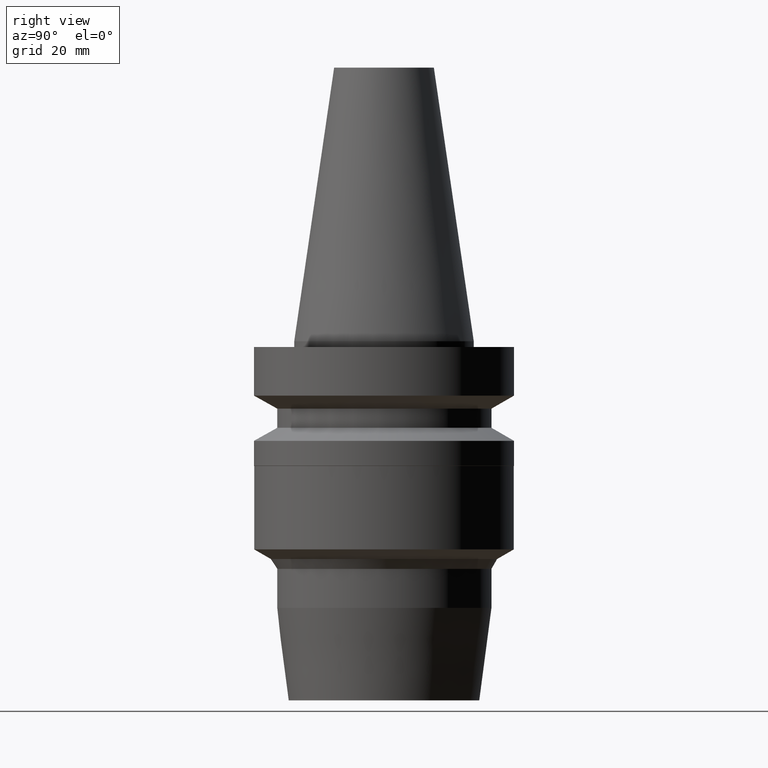
[diagram: clean part render]
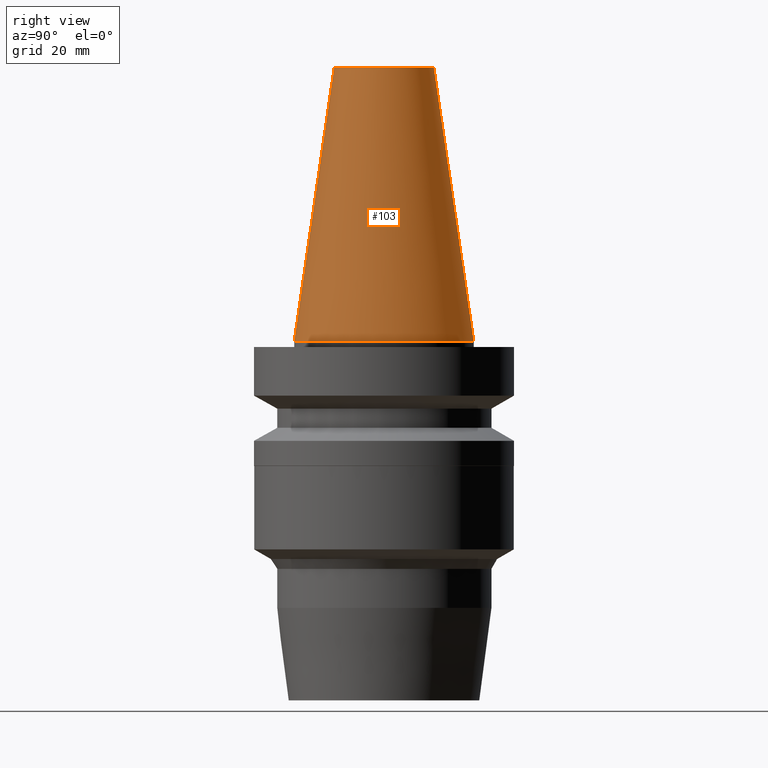
[diagram: same view with one face highlighted and labeled with its STEP entity id]
A machine part, right view. The second image highlights one B-rep face of the part: STEP entity #103.
In plain terms, the highlighted conical surface has half-angle 8.297 deg.
Its self-contained STEP definition (entity closure, byte-faithful):
#56=EDGE_CURVE('Unnamed[1]',#153,#153,#154,.T.);
#92=EDGE_CURVE('Unnamed[1]',#209,#209,#210,.T.);
#103=ADVANCED_FACE('Unnamed[1]',(#226,#227),#228,.T.);
#153=VERTEX_POINT('',#286);
#154=CIRCLE('',#287,8.81650000198669);
#209=VERTEX_POINT('',#355);
#210=CIRCLE('',#356,15.875);
#226=FACE_BOUND('',#376,.T.);
#227=FACE_BOUND('',#377,.T.);
#228=CONICAL_SURFACE('',#378,12.3457500009933,0.144815870013618);
#286=CARTESIAN_POINT('',(-2.96364525393659E-015,8.81650000198669,48.4));
#287=AXIS2_PLACEMENT_3D('',#442,#443,#444);
#355=CARTESIAN_POINT('',(-1.95674482349743E-031,15.875,1.94412679364642E-015));
#356=AXIS2_PLACEMENT_3D('',#503,#504,#505);
#376=EDGE_LOOP('',(#522));
#377=EDGE_LOOP('',(#523));
#378=AXIS2_PLACEMENT_3D('',#524,#525,#526);
#442=CARTESIAN_POINT('',(-2.96364525393659E-015,-5.92729050787319E-015,48.4));
#443=DIRECTION('',(6.12323399573677E-017,1.22464679914735E-016,-1.0));
#444=DIRECTION('',(-1.23259516440783E-032,1.0,1.22464679914735E-016));
#503=CARTESIAN_POINT('',(0.0,0.0,0.0));
#504=DIRECTION('',(6.12323399573677E-017,1.22464679914735E-016,-1.0));
#505=DIRECTION('',(-1.23259516440783E-032,1.0,1.22464679914735E-016));
#522=ORIENTED_EDGE('',*,*,#92,.F.);
#523=ORIENTED_EDGE('',*,*,#56,.T.);
#524=CARTESIAN_POINT('',(-1.4818226269683E-015,-2.96364525393659E-015,24.2));
#525=DIRECTION('',(6.12323399573677E-017,1.22464679914735E-016,-1.0));
#526=DIRECTION('',(-1.23259516440783E-032,1.0,1.22464679914735E-016));